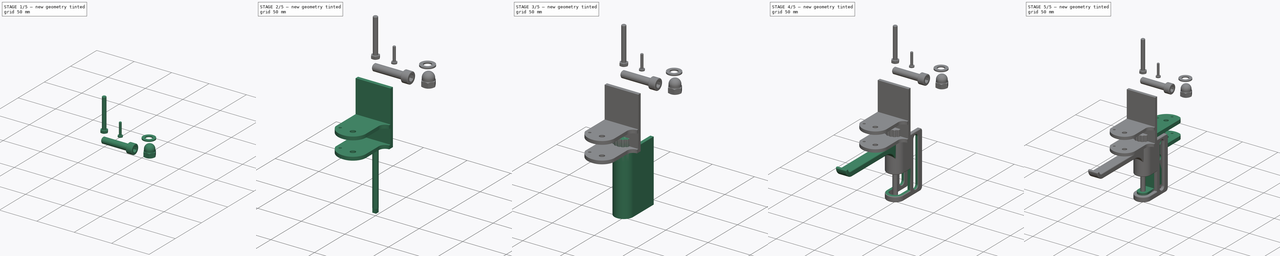
[diagram: build sequence overview — one tinted view per stage of 5, left to right]
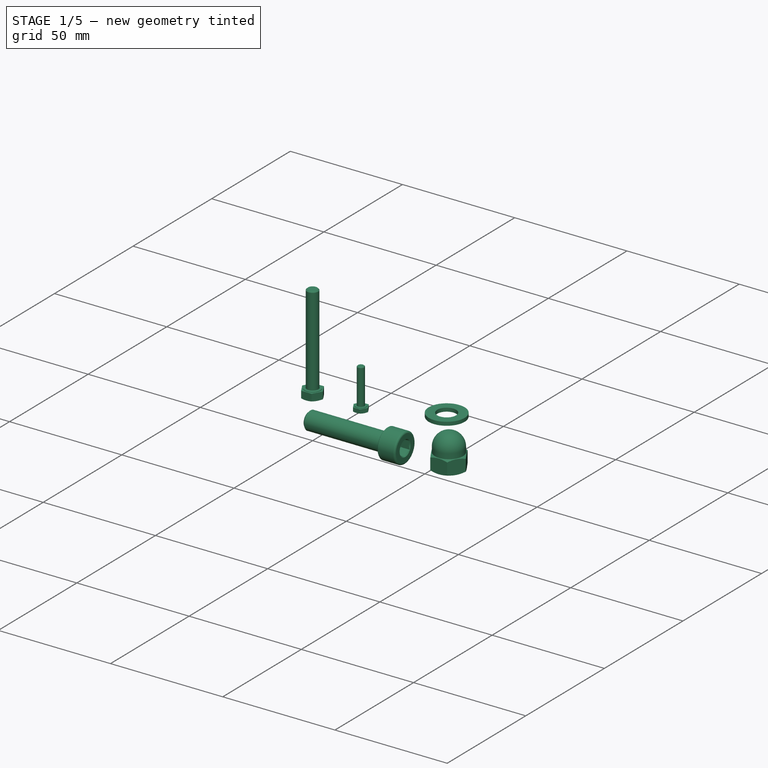
[diagram: stage 1 of 5 — iso view after this stage's code; geometry added in this stage tinted green]
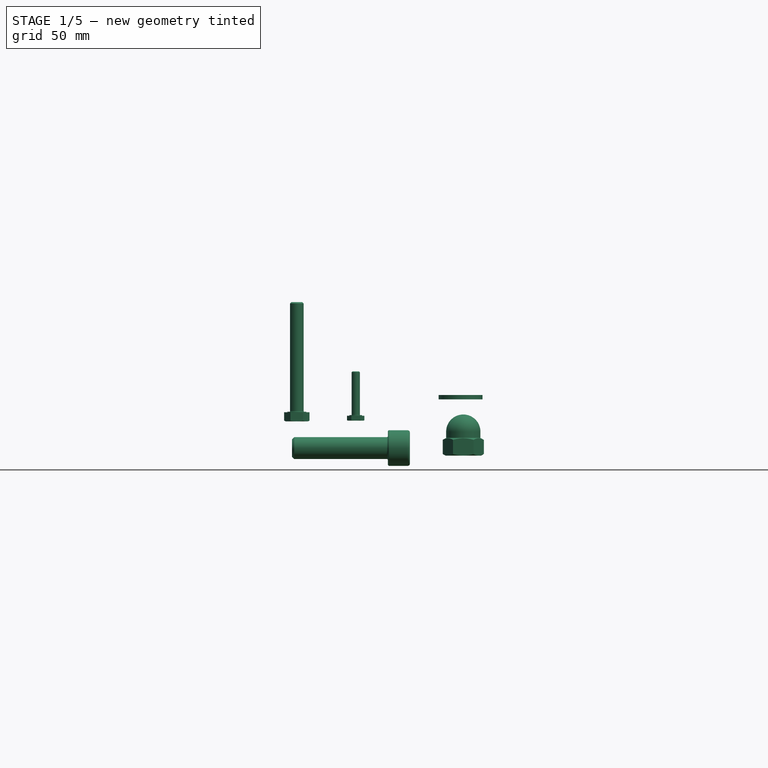
[diagram: stage 1 of 5 — front view after this stage's code; geometry added in this stage tinted green]
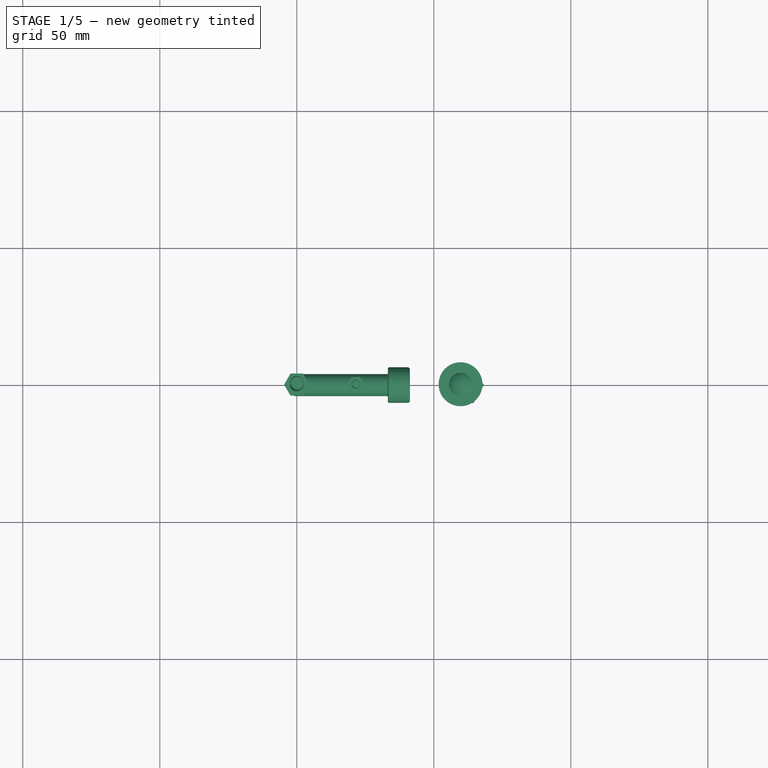
[diagram: stage 1 of 5 — top view after this stage's code; geometry added in this stage tinted green]
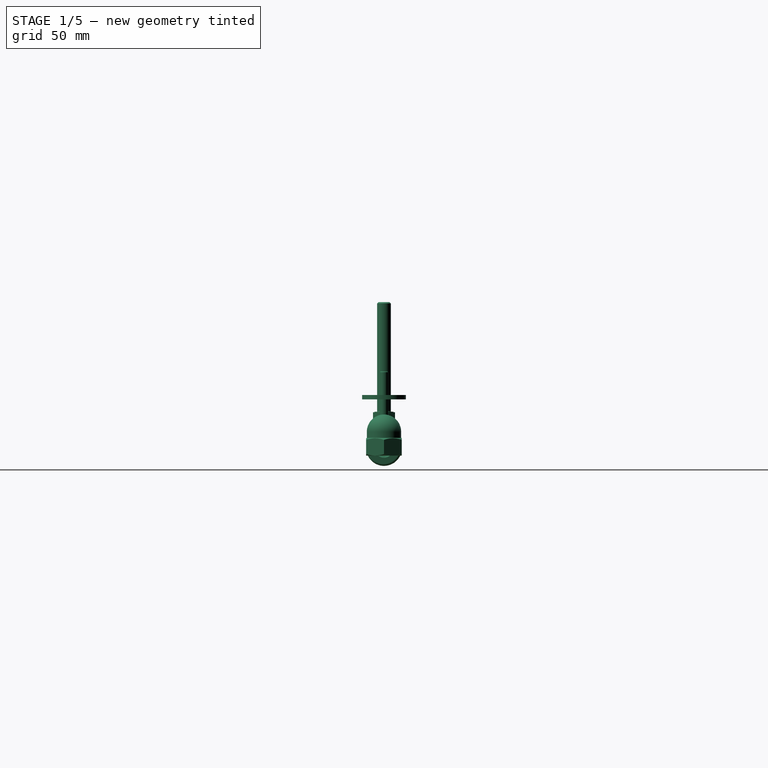
[diagram: stage 1 of 5 — right view after this stage's code; geometry added in this stage tinted green]
FCSTD DOCUMENT  (FreeCAD 0.20R29603 (Git))
Label: wristRest
License: All rights reserved
LicenseURL: http://en.wikipedia.org/wiki/All_rights_reserved
objects: Sketcher::SketchObject×19, PartDesign::Pad×10, PartDesign::Pocket×7, Part::Part2DObjectPython×5, PartDesign::Body×5, Part::FeaturePython×5, PartDesign::Fillet×2, App::DocumentObjectGroup×2, Spreadsheet::Sheet×1, PartDesign::Plane×1, PartDesign::PolarPattern×1, PartDesign::Chamfer×1
note: 76 computed .brp shape members not serialized (recipe doc carries the construction recipe); baked Part::Feature solids carry a one-line shape summary decoded from their .brp

FEATURE [PartDesign::Body] Body004  label="mountingBracket"
  Group = -> [Sketch016,Pad009,Sketch017,Pocket005,Sketch018,Pocket006]
  Origin = -> Origin004
  Placement = pos=(0,98,0) rot=(0,0,1;0rad)
  Tip = -> Pocket006
FEATURE [Part::FeaturePython] Screw  label="M3x16-Screw"  # Fasteners workbench fastener (typed FeaturePython)
  Placement = pos=(21.5,0,89.25) rot=(0,1,0;3.14159rad)
  diameter = 4
  invert = false
  leftHanded = false
  length = 3
  lengthCustom = 16
  matchOuter = false
  offset = 0
  thread = false
  type = 42
FEATURE [Part::FeaturePython] Screw001  label="M5x40-Screw"  # Fasteners workbench fastener (typed FeaturePython)
  Placement = pos=(0,0,90.5) rot=(0,1,0;3.14159rad)
  diameter = 7
  invert = false
  leftHanded = false
  length = 6
  lengthCustom = 40
  matchOuter = false
  offset = 0
  thread = false
  type = 42
FEATURE [Part::FeaturePython] Screw002  label="M8x35-Screw"  # Fasteners workbench fastener (typed FeaturePython)
  Placement = pos=(33.25,0,77.25) rot=(0,1,0;1.5708rad)
  diameter = 8
  invert = false
  leftHanded = false
  length = 7
  lengthCustom = 35
  matchOuter = false
  offset = 0
  thread = false
  type = 48
FEATURE [Part::FeaturePython] Nut  label="M8-Nut"  # Fasteners workbench fastener (typed FeaturePython)
  Placement = pos=(60.75,0,74.5) rot=(0,0,1;0rad)
  diameter = 4
  invert = false
  leftHanded = false
  matchOuter = false
  offset = 0
  thread = false
  type = 9
FEATURE [Part::FeaturePython] Washer  label="M8-Washer"  # Fasteners workbench fastener (typed FeaturePython)
  Placement = pos=(59.75,0,95) rot=(0,0,1;0rad)
  diameter = 8
  invert = false
  matchOuter = false
  offset = 0
  type = 5
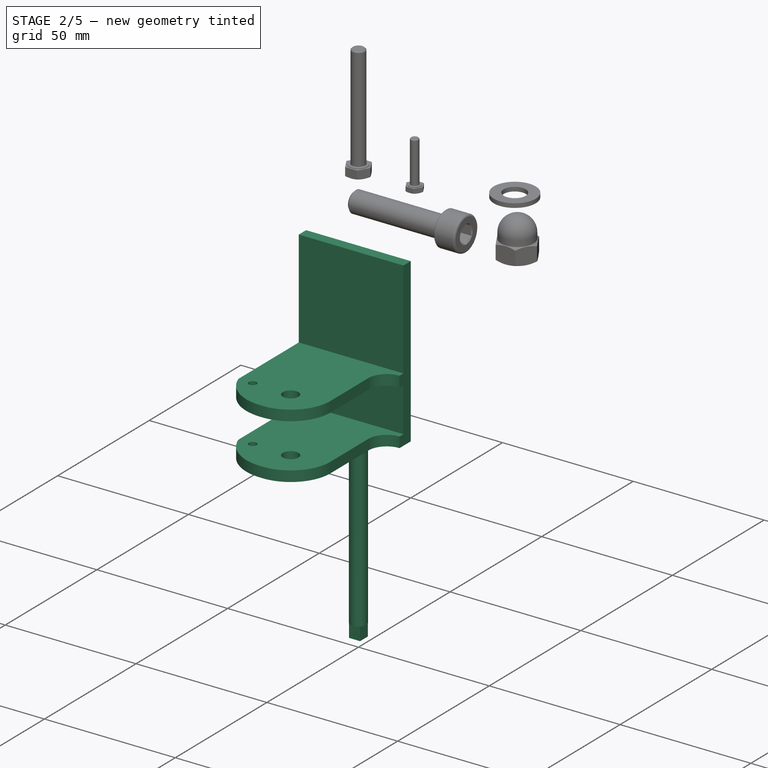
[diagram: stage 2 of 5 — iso view after this stage's code; geometry added in this stage tinted green]
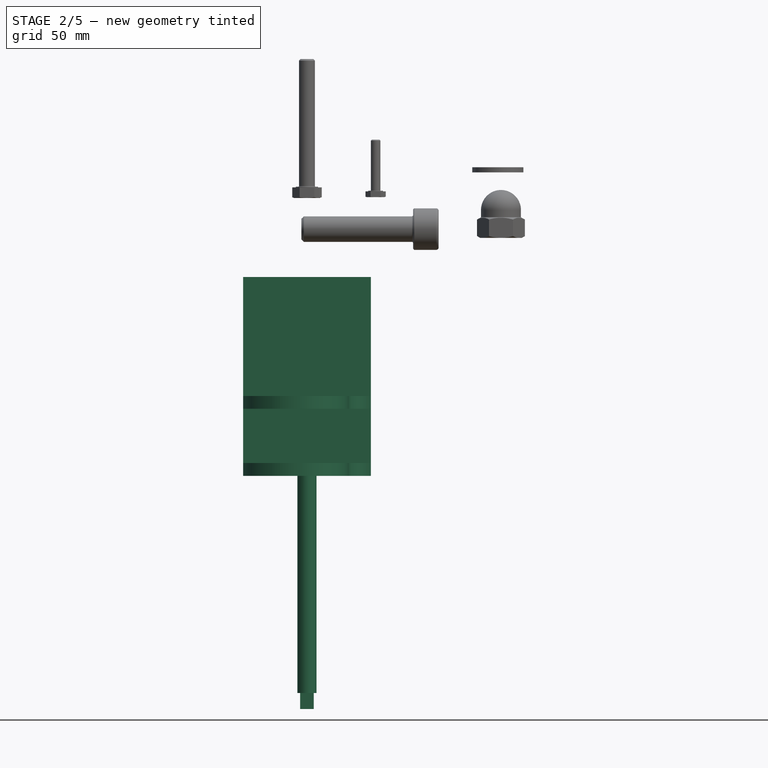
[diagram: stage 2 of 5 — front view after this stage's code; geometry added in this stage tinted green]
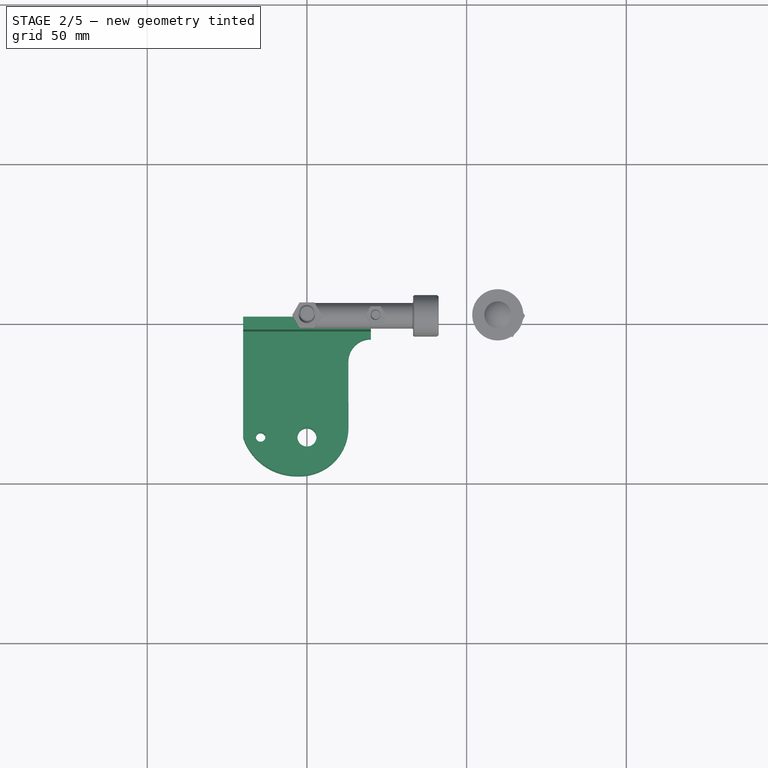
[diagram: stage 2 of 5 — top view after this stage's code; geometry added in this stage tinted green]
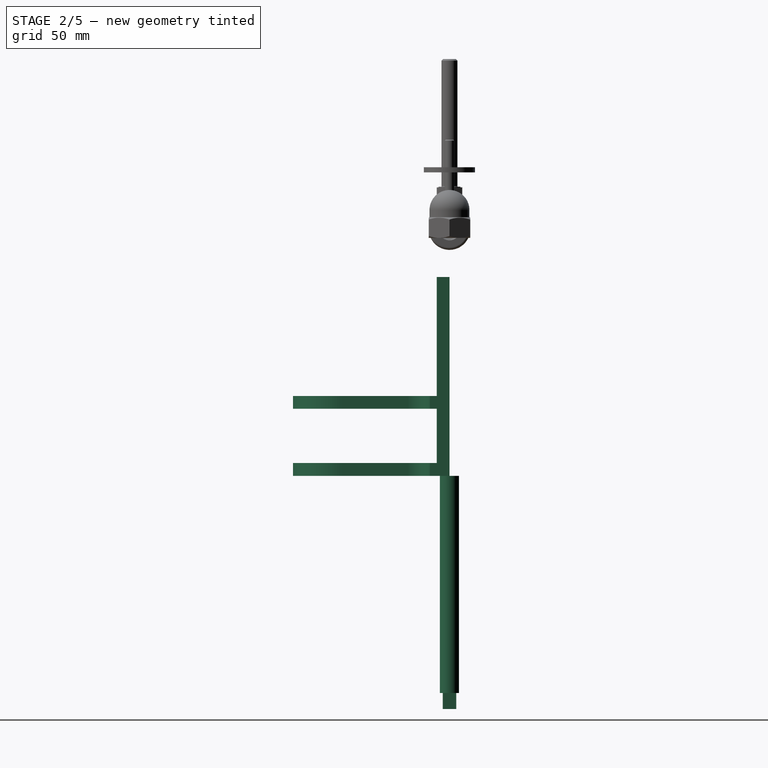
[diagram: stage 2 of 5 — right view after this stage's code; geometry added in this stage tinted green]
FEATURE [PartDesign::Body] Body002  label="Knob"
  Group = -> [Sketch011,Pad006,Sketch012,Pocket003,Sketch013,Pocket004,PolarPattern,Chamfer]
  Origin = -> Origin002
  Placement = pos=(0,0,-53) rot=(0,0,1;0rad)
  Tip = -> Chamfer
FEATURE [Part::Part2DObjectPython] Clone2D003  label="front_masterXY (2D)002"  # Draft 2D object (typed FeaturePython)
  Fuse = false
  Objects = -> [Sketch]
  Scale = (1,1,1)
FEATURE [Sketcher::SketchObject] Sketch014
  ExternalGeometry = -> [Clone2D003]
  FullyConstrained = true
  MapMode = 5
  Support = -> [XY_Plane003]
  expr: Constraints[1] = <<data>>.front_knob_screwdia
  sketch-geometry (1):
    g0: Circle CenterX=0 CenterY=0 CenterZ=0 NormalX=0 NormalY=0 NormalZ=1 AngleXU=0 Radius=3
  constraints (2):
    c: Coincident(g0,g-3)
    c: Diameter(g0) = 6
FEATURE [PartDesign::Pad] Pad007
  Direction = (0,0,1)
  Length = 68
  Length2 = 10
  Profile = -> Sketch014
  ReferenceAxis = -> Sketch014 [N_Axis]
  Reversed = true
  Type = 0
  expr: Length = <<data>>.front_height - <<data>>.dshape_thickness
FEATURE [Sketcher::SketchObject] Sketch015
  AttachmentOffset = pos=(0,0,-68) rot=(0,0,1;0rad)
  ExternalGeometry = -> [Clone2D003]
  FullyConstrained = true
  MapMode = 5
  Placement = pos=(0,0,-68) rot=(0,0,1;0rad)
  Support = -> [XY_Plane003]
  expr: .AttachmentOffset.Base.z = -1 * (<<data>>.front_height - <<data>>.dshape_thickness)
  sketch-geometry (4):
    g0: LineSegment StartX=-2.12132 StartY=2.12132 StartZ=0 EndX=2.12132 EndY=2.12132 EndZ=0
    g1: LineSegment StartX=2.12132 StartY=2.12132 StartZ=0 EndX=2.12132 EndY=-2.12132 EndZ=0
    g2: LineSegment StartX=2.12132 StartY=-2.12132 StartZ=0 EndX=-2.12132 EndY=-2.12132 EndZ=0
    g3: LineSegment StartX=-2.12132 StartY=-2.12132 StartZ=0 EndX=-2.12132 EndY=2.12132 EndZ=0
  constraints (11):
    c: Coincident(g0,g1)
    c: Coincident(g1,g2)
    c: Coincident(g2,g3)
    c: Coincident(g3,g0)
    c: Horizontal(g0)
    c: Horizontal(g2)
    c: Vertical(g1)
    c: Vertical(g3)
    c: PointOnObject(g0,g-3)
    c: Symmetric(g1,g0,g-3)
    c: Equal(g3,g0)
FEATURE [PartDesign::Pad] Pad008
  BaseFeature = -> Pad007
  Direction = (0,0,1)
  Length = 5
  Length2 = 10
  Profile = -> Sketch015
  ReferenceAxis = -> Sketch015 [N_Axis]
  Reversed = true
  Type = 0
  expr: Length = <<data>>.dshape_thickness
FEATURE [PartDesign::Body] Body003  label="Spindle"
  Group = -> [Sketch014,Clone2D003,Pad007,Sketch015,Pad008]
  Origin = -> Origin003
  Tip = -> Pad008
FEATURE [Sketcher::SketchObject] Sketch016
  FullyConstrained = true
  MapMode = 5
  Placement = pos=(0,0,0) rot=(0.57735,0.57735,0.57735;2.0944rad)
  Support = -> [YZ_Plane004]
  expr: Constraints[28] = <<data>>.dshape_distance + <<data>>.dshape_thickness
  sketch-geometry (10):
    g0: LineSegment StartX=0 StartY=62.27 StartZ=0 EndX=0 EndY=0 EndZ=0
    g1: LineSegment StartX=0 StartY=0 StartZ=0 EndX=-49 EndY=0 EndZ=0
    g2: LineSegment StartX=-49 StartY=0 StartZ=0 EndX=-49 EndY=4 EndZ=0
    g3: LineSegment StartX=-49 StartY=4 StartZ=0 EndX=-4 EndY=4 EndZ=0
    g4: LineSegment StartX=-4 StartY=4 StartZ=0 EndX=-4 EndY=21 EndZ=0
    g5: LineSegment StartX=-4 StartY=21 StartZ=0 EndX=-49 EndY=21 EndZ=0
    g6: LineSegment StartX=-49 StartY=21 StartZ=0 EndX=-49 EndY=25 EndZ=0
    g7: LineSegment StartX=-49 StartY=25 StartZ=0 EndX=-4 EndY=25 EndZ=0
    g8: LineSegment StartX=-4 StartY=25 StartZ=0 EndX=-4 EndY=62.27 EndZ=0
    g9: LineSegment StartX=-4 StartY=62.27 StartZ=0 EndX=0 EndY=62.27 EndZ=0
  constraints (29):
    c: PointOnObject(g0,g-2)
    c: Coincident(g0,g1)
    c: Horizontal(g1)
    c: Coincident(g1,g2)
    c: Vertical(g2)
    c: Coincident(g2,g3)
    c: Horizontal(g3)
    c: Coincident(g3,g4)
    c: Vertical(g4)
    c: Coincident(g4,g5)
    c: Horizontal(g5)
    c: Coincident(g5,g6)
    c: Coincident(g6,g7)
    c: Horizontal(g7)
    c: Coincident(g7,g8)
    c: Vertical(g8)
    c: Coincident(g8,g9)
    c: Horizontal(g9)
    c: Coincident(g0,g9)
    c: Equal(g3,g5)
    c: Equal(g2,g6)
    c: Equal(g9,g2)
    c: Vertical(g6)
    c: Vertical(g7,g4)
    c: DistanceX(g7,g7) = 45
    c: DistanceY(g0,g0) = 62.27
    c: DistanceY(g2,g2) = 4
    c: Coincident(g0,g-1)
    c: DistanceY(g3,g7) = 21
FEATURE [PartDesign::Pad] Pad009
  Direction = (1,-2e-16,3e-16)
  Length = 40
  Length2 = 10
  Midplane = true
  Placement = pos=(0,0,0) rot=(0.57735,0.57735,0.57735;2.0944rad)
  Profile = -> Sketch016
  ReferenceAxis = -> Sketch016 [N_Axis]
  Type = 0
FEATURE [Sketcher::SketchObject] Sketch017
  ExternalGeometry = -> [Pad009]
  FullyConstrained = true
  MapMode = 5
  Support = -> [XY_Plane004]
  expr: Constraints[1] = <<data>>.dshape_rotation_dia
  sketch-geometry (1):
    g0: Circle CenterX=0 CenterY=-37 CenterZ=0 NormalX=0 NormalY=0 NormalZ=1 AngleXU=0 Radius=3
  constraints (3):
    c: PointOnObject(g0,g-2)
    c: Diameter(g0) = 6
    c: DistanceY(g-3,g0) = 12
FEATURE [PartDesign::Pocket] Pocket005
  BaseFeature = -> Pad009
  Direction = (0,0,-1)
  Length = 5
  Length2 = 5
  Placement = pos=(0,0,0) rot=(0.57735,0.57735,0.57735;2.0944rad)
  Profile = -> Sketch017
  ReferenceAxis = -> Sketch017 [N_Axis]
  Reversed = true
  Type = 1
FEATURE [Sketcher::SketchObject] Sketch018
  ExternalGeometry = -> [Pocket005]
  FullyConstrained = false
  MapMode = 5
  Support = -> [XY_Plane004]
  expr: Constraints[15] = <<data>>.dshape_fix_dia
  sketch-geometry (10):
    g0: ArcOfCircle CenterX=-3.22144 CenterY=-31.27 CenterZ=0 NormalX=0 NormalY=0 NormalZ=1 AngleXU=0 Radius=17.73 StartAngle=3.47068 EndAngle=4.7124
    g1: LineSegment StartX=-20 StartY=-37 StartZ=0 EndX=-20 EndY=-54.21 EndZ=0
    g2: ArcOfCircle CenterX=-2.22999 CenterY=-33.77 CenterZ=0 NormalX=0 NormalY=0 NormalZ=1 AngleXU=0 Radius=15.23 StartAngle=4.71239 EndAngle=6.28416
    g3: LineSegment StartX=20 StartY=-6.12 StartZ=0 EndX=20 EndY=-54.21 EndZ=0
    g4: LineSegment StartX=20 StartY=-54.21 StartZ=0 EndX=-20 EndY=-54.21 EndZ=0
    g5: LineSegment StartX=-3.22128 StartY=-49 StartZ=0 EndX=-2.22999 EndY=-49 EndZ=0
    g6: Circle CenterX=-14.5 CenterY=-37 CenterZ=0 NormalX=0 NormalY=0 NormalZ=1 AngleXU=0 Radius=1.5
    g7: LineSegment StartX=0 StartY=-37 StartZ=0 EndX=-14.5 EndY=-37 EndZ=0
    g8: LineSegment StartX=13 StartY=-33.7552 StartZ=0 EndX=12.98 EndY=-13.1468 EndZ=0
    g9: ArcOfCircle CenterX=20 CenterY=-13.14 CenterZ=0 NormalX=0 NormalY=0 NormalZ=1 AngleXU=0 Radius=7.02 StartAngle=1.5708 EndAngle=3.14256
  constraints (28):
    c: PointOnObject(g0,g-5)
    c: PointOnObject(g0,g-4)
    c: Coincident(g0,g1)
    c: Vertical(g1)
    c: PointOnObject(g2,g-4)
    c: Coincident(g3,g4)
    c: Coincident(g4,g1)
    c: Horizontal(g4)
    c: Vertical(g3)
    c: Coincident(g5,g0)
    c: Tangent(g5,g2) = -1.5708
    c: Coincident(g7,g-6)
    c: Coincident(g7,g6)
    c: Horizontal(g7)
    c: DistanceX(g7,g7) = 14.5
    c: Diameter(g6) = 3
    c: DistanceX(g7,g2) = 13
    c: Horizontal(g0,g7)
    c: Tangent(g2,g8) = -1.5708
    c: Vertical(g3,g-3)
    c: Coincident(g9,g3)
    c: Perpendicular(g9,g3)
    c: Tangent(g9,g8) = 1.5708
    c: Radius(g9) = 7.02
    c: DistanceY(g-4,g3) = 42.88
    c: DistanceY(g1,g1) = 17.21
    c: Radius(g0) = 17.73
    c: Radius(g2) = 15.23
FEATURE [PartDesign::Pocket] Pocket006
  BaseFeature = -> Pocket005
  Direction = (0,0,-1)
  Length = 5
  Length2 = 5
  Midplane = true
  Placement = pos=(0,0,0) rot=(0.57735,0.57735,0.57735;2.0944rad)
  Profile = -> Sketch018
  ReferenceAxis = -> Sketch018 [N_Axis]
  Type = 1
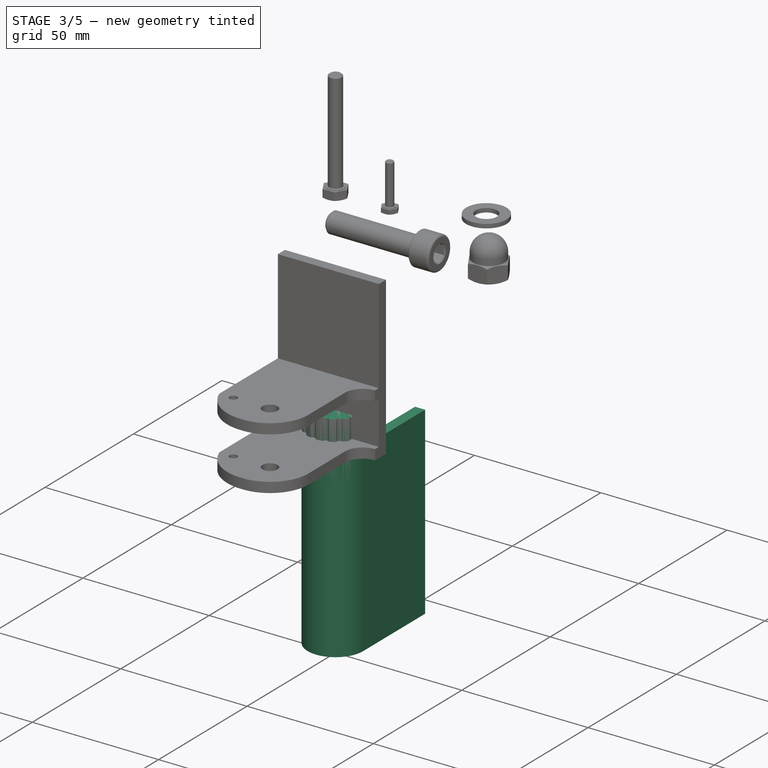
[diagram: stage 3 of 5 — iso view after this stage's code; geometry added in this stage tinted green]
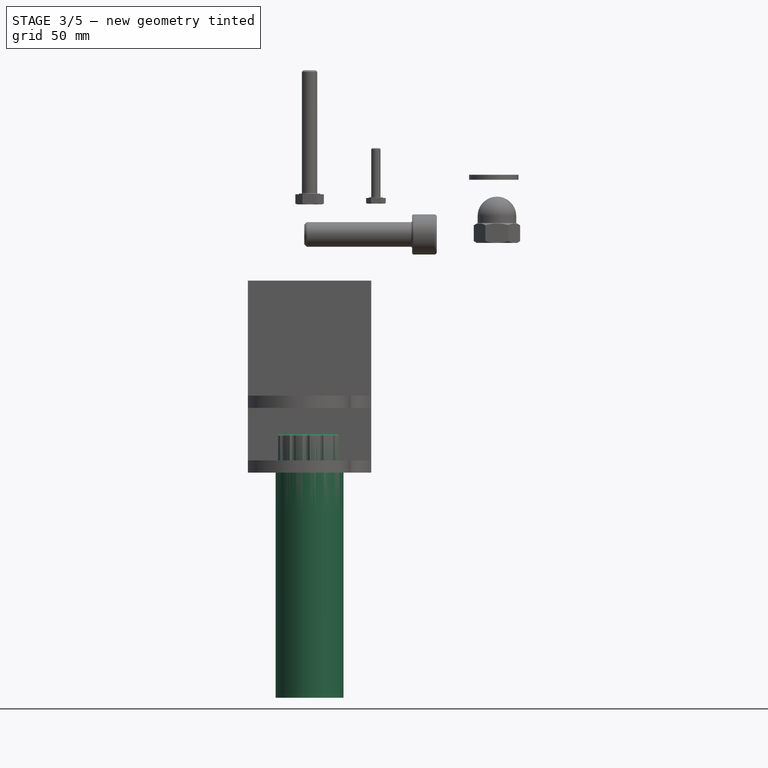
[diagram: stage 3 of 5 — front view after this stage's code; geometry added in this stage tinted green]
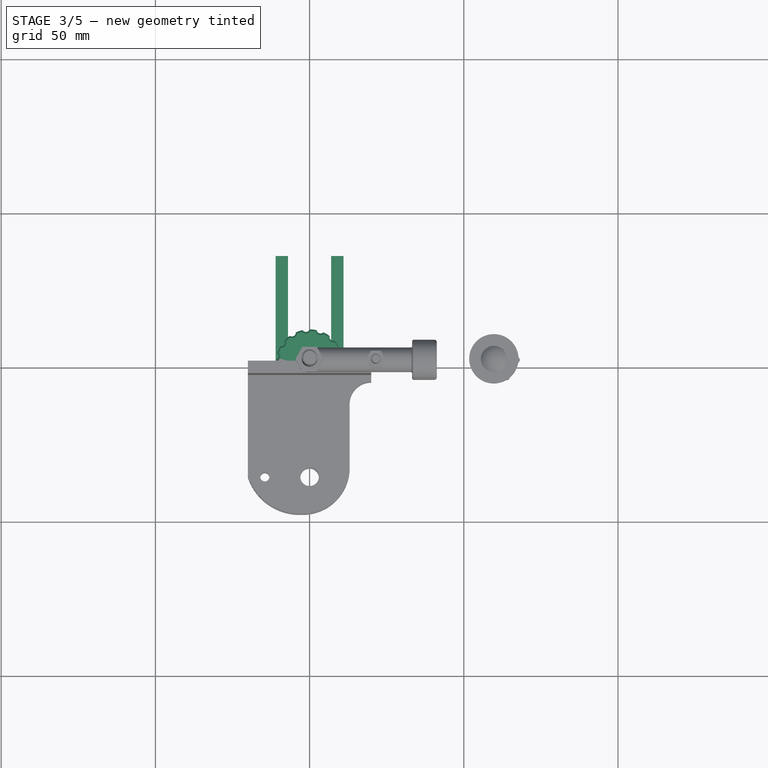
[diagram: stage 3 of 5 — top view after this stage's code; geometry added in this stage tinted green]
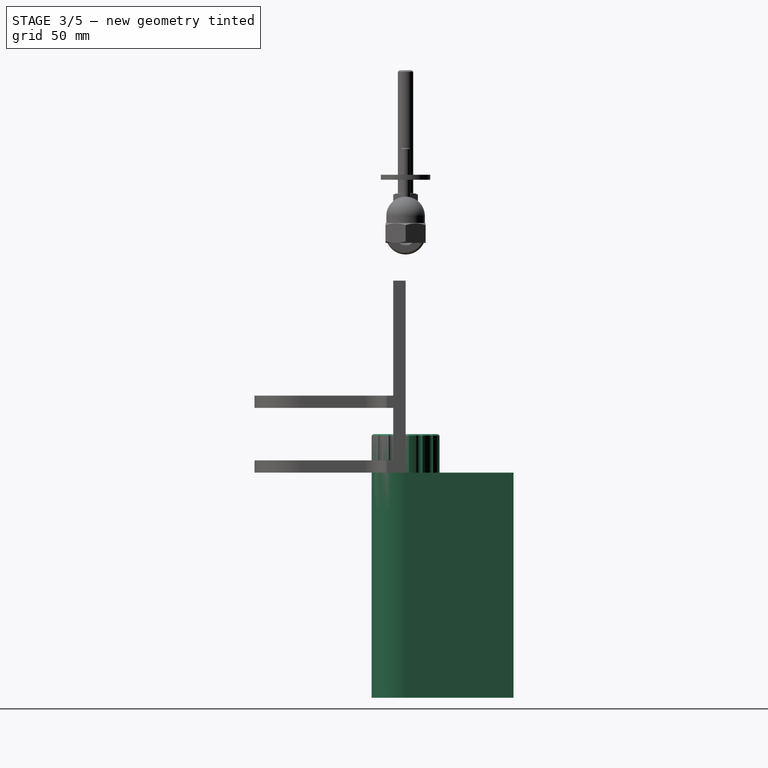
[diagram: stage 3 of 5 — right view after this stage's code; geometry added in this stage tinted green]
FEATURE [Part::Part2DObjectPython] Clone2D001  label="front_masterXY (2D)001"  # Draft 2D object (typed FeaturePython)
  Fuse = false
  Objects = -> [Sketch]
  Scale = (1,1,1)
FEATURE [Sketcher::SketchObject] Sketch007
  ExternalGeometry = -> [Clone2D001]
  FullyConstrained = true
  MapMode = 5
  Support = -> [XY_Plane001]
  sketch-geometry (8):
    g0: LineSegment StartX=-7 StartY=35 StartZ=0 EndX=-7 EndY=0 EndZ=0
    g1: ArcOfCircle CenterX=0 CenterY=0 CenterZ=0 NormalX=0 NormalY=0 NormalZ=1 AngleXU=0 Radius=7 StartAngle=3.14159 EndAngle=6.28319
    g2: LineSegment StartX=7 StartY=-1.7e-15 StartZ=0 EndX=7 EndY=35 EndZ=0
    g3: LineSegment StartX=7 StartY=35 StartZ=0 EndX=11 EndY=35 EndZ=0
    g4: LineSegment StartX=11 StartY=35 StartZ=0 EndX=11 EndY=0 EndZ=0
    g5: ArcOfCircle CenterX=3e-15 CenterY=1.3e-15 CenterZ=0 NormalX=0 NormalY=0 NormalZ=1 AngleXU=0 Radius=11 StartAngle=3.14159 EndAngle=6.28319
    g6: LineSegment StartX=-11 StartY=0 StartZ=0 EndX=-11 EndY=35 EndZ=0
    g7: LineSegment StartX=-11 StartY=35 StartZ=0 EndX=-7 EndY=35 EndZ=0
  constraints (19):
    c: Coincident(g-4,g0)
    c: Coincident(g0,g-4)
    c: Tangent(g0,g1) = -1.5708
    c: Coincident(g1,g-5)
    c: Tangent(g1,g2) = -1.5708
    c: Coincident(g2,g3)
    c: Coincident(g3,g4)
    c: PointOnObject(g4,g-1)
    c: Vertical(g4)
    c: Tangent(g4,g5) = 1.5708
    c: PointOnObject(g5,g-1)
    c: Tangent(g5,g6) = 1.5708
    c: Coincident(g6,g7)
    c: Coincident(g7,g0)
    c: Horizontal(g6,g0)
    c: Horizontal(g0,g2)
    c: Horizontal(g2,g3)
    c: Equal(g3,g7)
    c: DistanceX(g3,g3) = 4
FEATURE [PartDesign::Pad] Pad004
  Direction = (0,0,1)
  Length = 73
  Length2 = 10
  Profile = -> Sketch007
  ReferenceAxis = -> Sketch007 [N_Axis]
  Reversed = true
  Type = 0
  expr: Length = <<data>>.front_height
FEATURE [PartDesign::Body] Body001  label="wristRest_Outside"
  Group = -> [Clone2D001,Sketch007,Pad004,Clone2D002,Sketch008,Pocket001,Sketch009,Pocket002,Sketch010,Pad005,Fillet002,Fillet003]
  Origin = -> Origin001
  Tip = -> Fillet003
FEATURE [Sketcher::SketchObject] Sketch011
  FullyConstrained = true
  MapMode = 5
  Support = -> [XY_Plane002]
  expr: Constraints[1] = <<data>>.front_knob_dia
  expr: Constraints[3] = <<data>>.front_knob_screwdia + 1
  sketch-geometry (2):
    g0: Circle CenterX=0 CenterY=0 CenterZ=0 NormalX=0 NormalY=0 NormalZ=1 AngleXU=0 Radius=11
    g1: Circle CenterX=0 CenterY=0 CenterZ=0 NormalX=0 NormalY=0 NormalZ=1 AngleXU=0 Radius=3.5
  constraints (4):
    c: Coincident(g0,g-1)
    c: Diameter(g0) = 22
    c: Coincident(g1,g0)
    c: Diameter(g1) = 7
FEATURE [PartDesign::Pad] Pad006
  Direction = (0,0,1)
  Length = 25
  Length2 = 10
  Midplane = true
  Profile = -> Sketch011
  ReferenceAxis = -> Sketch011 [N_Axis]
  Type = 0
  expr: Length = <<data>>.front_knob_height
FEATURE [Sketcher::SketchObject] Sketch012
  FullyConstrained = true
  MapMode = 5
  Support = -> [XY_Plane002]
  sketch-geometry (7):
    g0: LineSegment StartX=0 StartY=5.88897 StartZ=0 EndX=-5.1 EndY=2.94449 EndZ=0
    g1: LineSegment StartX=-5.1 StartY=2.94449 StartZ=0 EndX=-5.1 EndY=-2.94449 EndZ=0
    g2: LineSegment StartX=-5.1 StartY=-2.94449 StartZ=0 EndX=0 EndY=-5.88897 EndZ=0
    g3: LineSegment StartX=0 StartY=-5.88897 StartZ=0 EndX=5.1 EndY=-2.94449 EndZ=0
    g4: LineSegment StartX=5.1 StartY=-2.94449 StartZ=0 EndX=5.1 EndY=2.94449 EndZ=0
    g5: LineSegment StartX=5.1 StartY=2.94449 StartZ=0 EndX=0 EndY=5.88897 EndZ=0
    g6: Circle CenterX=0 CenterY=0 CenterZ=0 NormalX=0 NormalY=0 NormalZ=1 AngleXU=0 Radius=5.88897
  constraints (16):
    c: Coincident(g0,g1)
    c: Coincident(g1,g2)
    c: Coincident(g2,g3)
    c: Coincident(g3,g4)
    c: Coincident(g4,g5)
    c: Coincident(g5,g0)
    c: Equal(g0, g1-g5) x5
    c: PointOnObject(g0,g6)
    c: PointOnObject(g1,g6)
    c: PointOnObject(g2,g6)
    c: PointOnObject(g3,g6)
    c: PointOnObject(g4,g6)
    c: PointOnObject(g5,g6)
    c: Coincident(g6,g-1)
    c: PointOnObject(g5,g-2)
    c: Distance(g0,g3) = 10.2
FEATURE [PartDesign::Pocket] Pocket003  label="m6screw"
  BaseFeature = -> Pad006
  Direction = (0,0,-1)
  Length = 5
  Length2 = 5
  Midplane = true
  Profile = -> Sketch012
  ReferenceAxis = -> Sketch012 [N_Axis]
  Type = 0
FEATURE [Sketcher::SketchObject] Sketch013
  ExternalGeometry = -> [Pocket003]
  FullyConstrained = true
  MapMode = 5
  Support = -> [XY_Plane002]
  expr: Constraints[2] = <<data>>.front_knob_dia / 2 + 0.5
  sketch-geometry (1):
    g0: Circle CenterX=11.5 CenterY=0 CenterZ=0 NormalX=0 NormalY=0 NormalZ=1 AngleXU=0 Radius=1.25
  constraints (3):
    c: Diameter(g0) = 2.5
    c: PointOnObject(g0,g-1)
    c: DistanceX(g0) = 11.5
FEATURE [PartDesign::Pocket] Pocket004
  BaseFeature = -> Pocket003
  Direction = (0,0,-1)
  Length = 5
  Length2 = 5
  Midplane = true
  Profile = -> Sketch013
  ReferenceAxis = -> Sketch013 [N_Axis]
  Type = 1
FEATURE [PartDesign::PolarPattern] PolarPattern
  Angle = 360
  Axis = -> Sketch013 [N_Axis]
  BaseFeature = -> Pocket004
  Occurrences = 15
  Originals = -> [Pocket004]
FEATURE [PartDesign::Chamfer] Chamfer
  Angle = 45
  Base = -> PolarPattern [Face4,Face2]
  BaseFeature = -> PolarPattern
  ChamferType = 0
  FlipDirection = false
  Size = 0.5
  Size2 = 1
  SupportTransform = false
  UseAllEdges = false
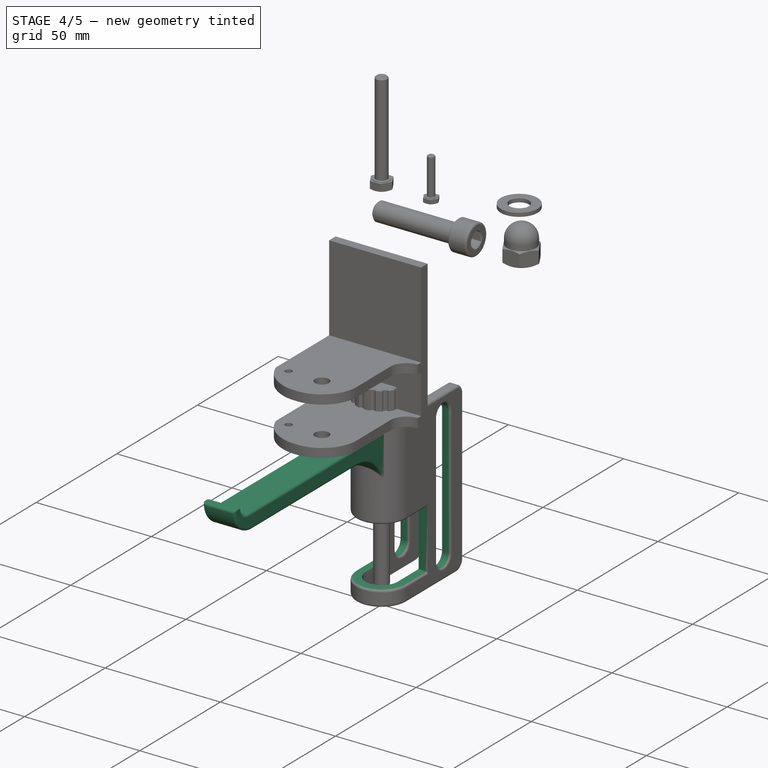
[diagram: stage 4 of 5 — iso view after this stage's code; geometry added in this stage tinted green]
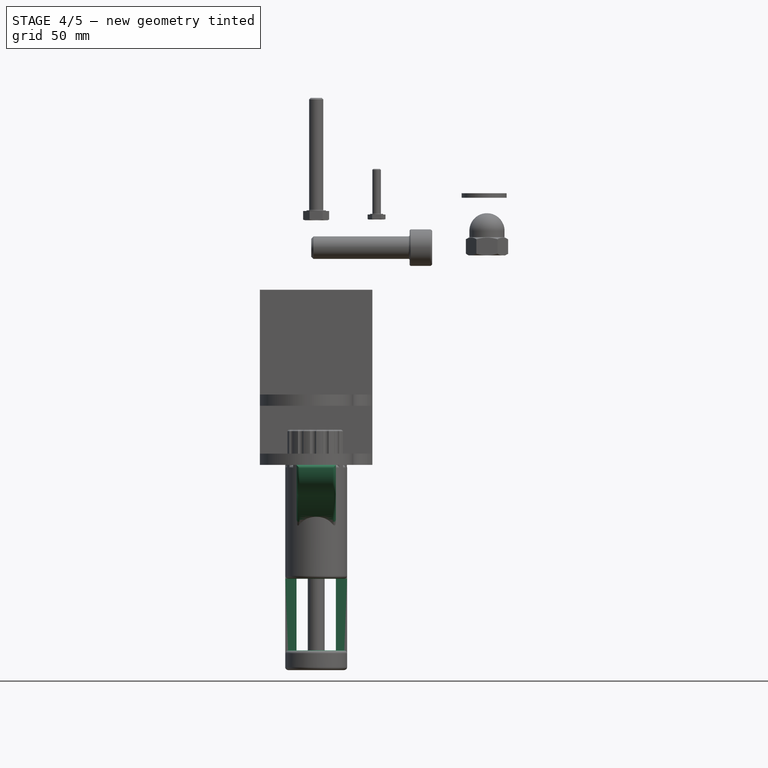
[diagram: stage 4 of 5 — front view after this stage's code; geometry added in this stage tinted green]
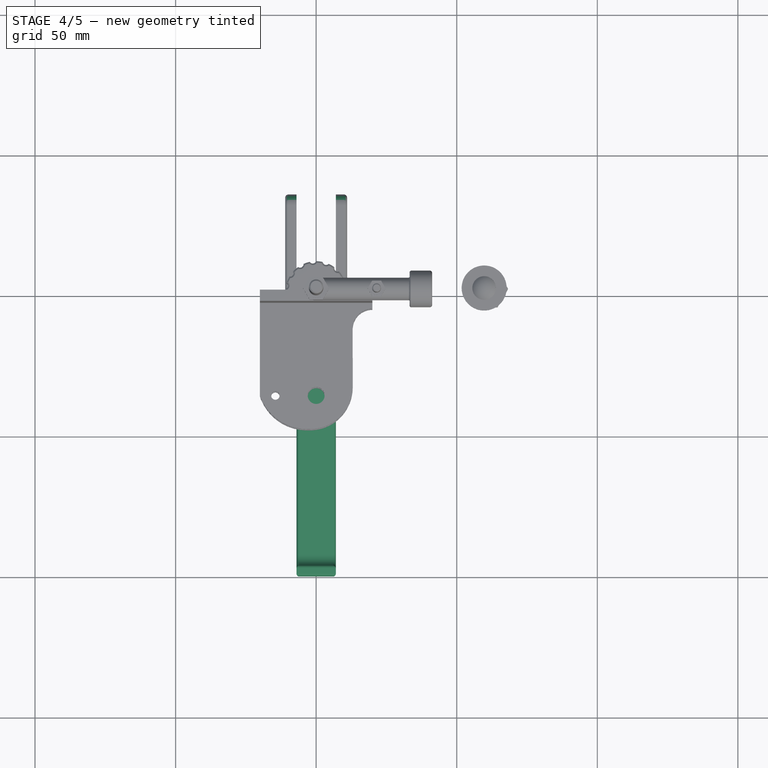
[diagram: stage 4 of 5 — top view after this stage's code; geometry added in this stage tinted green]
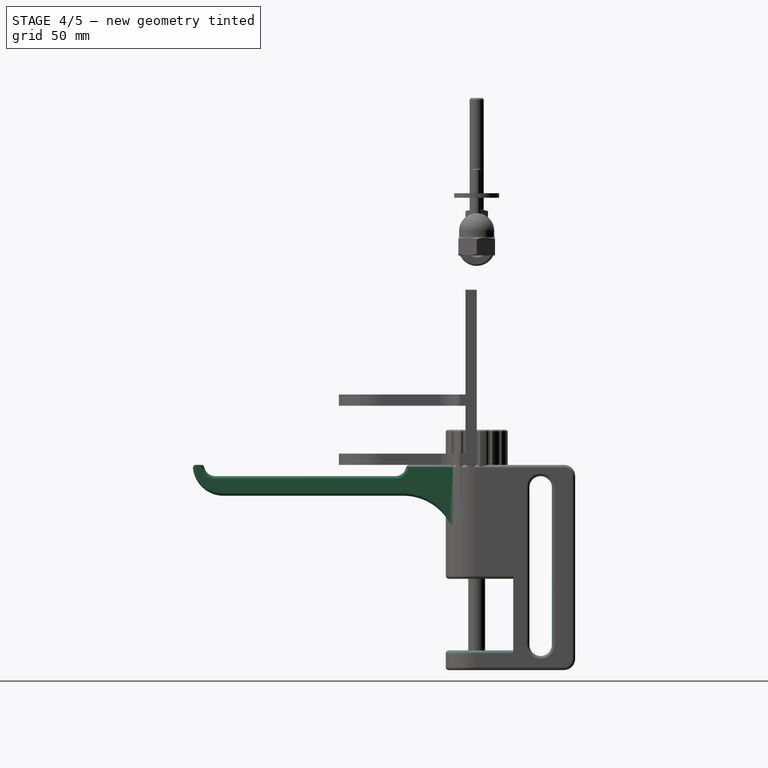
[diagram: stage 4 of 5 — right view after this stage's code; geometry added in this stage tinted green]
FEATURE [Part::Part2DObjectPython] Clone2D002  label="front_masterYZ (2D)"  # Draft 2D object (typed FeaturePython)
  Fuse = false
  Objects = -> [Sketch001]
  Placement = pos=(0,0,0) rot=(0.57735,0.57735,0.57735;2.0944rad)
  Scale = (1,1,1)
FEATURE [Sketcher::SketchObject] Sketch008
  ExternalGeometry = -> [Clone2D002,Pad004]
  FullyConstrained = true
  MapMode = 5
  Placement = pos=(0,0,0) rot=(0.57735,0.57735,0.57735;2.0944rad)
  Support = -> [YZ_Plane001]
  expr: Constraints[12] = <<data>>.dshape_thickness
  expr: Constraints[7] = <<data>>.front_slidingHole / 2
  sketch-geometry (5):
    g0: ArcOfCircle CenterX=22.75 CenterY=-8 CenterZ=0 NormalX=0 NormalY=0 NormalZ=1 AngleXU=0 Radius=4 StartAngle=0 EndAngle=3.14159
    g1: ArcOfCircle CenterX=22.75 CenterY=-64 CenterZ=0 NormalX=0 NormalY=0 NormalZ=1 AngleXU=0 Radius=4 StartAngle=3.14159 EndAngle=6.28319
    g2: LineSegment StartX=18.75 StartY=-8 StartZ=0 EndX=18.75 EndY=-64 EndZ=0
    g3: LineSegment StartX=26.75 StartY=-64 StartZ=0 EndX=26.75 EndY=-8 EndZ=0
    g4: LineSegment StartX=0 StartY=-68 StartZ=0 EndX=35 EndY=-68 EndZ=0
  constraints (13):
    c: Tangent(g0,g2) = -1.5708
    c: Tangent(g2,g1) = -1.5708
    c: Tangent(g1,g3) = -1.5708
    c: Tangent(g3,g0) = -1.5708
    c: Equal(g0,g1)
    c: Coincident(g0,g-3)
    c: Vertical(g2)
    c: Radius(g0) = 4
    c: PointOnObject(g4,g-2)
    c: Horizontal(g4)
    c: Vertical(g4,g-4)
    c: Tangent(g4,g1)
    c: DistanceY(g-4,g4) = 5
FEATURE [PartDesign::Pocket] Pocket001  label="slidingPocket"
  BaseFeature = -> Pad004
  Direction = (-1,2e-16,-3e-16)
  Length = 5
  Length2 = 5
  Midplane = true
  Profile = -> Sketch008
  ReferenceAxis = -> Sketch008 [N_Axis]
  Type = 1
FEATURE [Sketcher::SketchObject] Sketch009
  ExternalGeometry = -> [Pocket001]
  FullyConstrained = true
  MapMode = 5
  Placement = pos=(0,0,0) rot=(0.57735,0.57735,0.57735;2.0944rad)
  Support = -> [YZ_Plane001]
  expr: Constraints[10] = <<data>>.front_knob_dia + 2
  expr: Constraints[11] = <<data>>.front_knob_height + 0.5
  expr: Constraints[9] = <<data>>.dshape_thickness + 2
  sketch-geometry (4):
    g0: LineSegment StartX=-11 StartY=-66 StartZ=0 EndX=13 EndY=-66 EndZ=0
    g1: LineSegment StartX=13 StartY=-66 StartZ=0 EndX=13 EndY=-40.5 EndZ=0
    g2: LineSegment StartX=13 StartY=-40.5 StartZ=0 EndX=-11 EndY=-40.5 EndZ=0
    g3: LineSegment StartX=-11 StartY=-40.5 StartZ=0 EndX=-11 EndY=-66 EndZ=0
  constraints (12):
    c: Coincident(g0,g1)
    c: Coincident(g1,g2)
    c: Coincident(g2,g3)
    c: Coincident(g3,g0)
    c: Horizontal(g0)
    c: Horizontal(g2)
    c: Vertical(g1)
    c: Vertical(g3)
    c: Vertical(g0,g-3)
    c: DistanceY(g-3,g0) = 7
    c: DistanceX(g0,g0) = 24
    c: DistanceY(g3,g3) = 25.5
FEATURE [PartDesign::Pocket] Pocket002
  BaseFeature = -> Pocket001
  Direction = (-1,2e-16,-3e-16)
  Length = 5
  Length2 = 5
  Midplane = true
  Profile = -> Sketch009
  ReferenceAxis = -> Sketch009 [N_Axis]
  Type = 1
FEATURE [Sketcher::SketchObject] Sketch010
  ExternalGeometry = -> [Pocket002]
  FullyConstrained = true
  MapMode = 5
  Placement = pos=(0,0,0) rot=(0.57735,0.57735,0.57735;2.0944rad)
  Support = -> [YZ_Plane001]
  sketch-geometry (10):
    g0: LineSegment StartX=-7 StartY=0 StartZ=0 EndX=-25 EndY=0 EndZ=0
    g1: ArcOfCircle CenterX=-29 CenterY=7e-16 CenterZ=0 NormalX=0 NormalY=0 NormalZ=1 AngleXU=0 Radius=4 StartAngle=4.71239 EndAngle=6.28319
    g2: LineSegment StartX=-29 StartY=-4 StartZ=0 EndX=-93 EndY=-4 EndZ=0
    g3: ArcOfCircle CenterX=-93 CenterY=2.1e-15 CenterZ=0 NormalX=0 NormalY=0 NormalZ=1 AngleXU=0 Radius=4 StartAngle=3.14159 EndAngle=4.71239
    g4: LineSegment StartX=-97 StartY=2.1e-15 StartZ=0 EndX=-101 EndY=2.1e-15 EndZ=0
    g5: ArcOfCircle CenterX=-90 CenterY=-7e-16 CenterZ=0 NormalX=0 NormalY=0 NormalZ=1 AngleXU=0 Radius=11 StartAngle=3.14159 EndAngle=4.71239
    g6: LineSegment StartX=-90 StartY=-11 StartZ=0 EndX=-26.1 EndY=-11 EndZ=0
    g7: ArcOfCircle CenterX=-26.1 CenterY=-30 CenterZ=0 NormalX=0 NormalY=0 NormalZ=1 AngleXU=0 Radius=19 StartAngle=9.7e-15 EndAngle=1.5708
    g8: LineSegment StartX=-7 StartY=-30 StartZ=0 EndX=-7 EndY=0 EndZ=0
    g9: LineSegment StartX=-7.1 StartY=-30 StartZ=0 EndX=-7 EndY=-30 EndZ=0
  constraints (28):
    c: PointOnObject(g0,g-1)
    c: Perpendicular(g0,g1) = 4.71239
    c: Horizontal(g2)
    c: Tangent(g2,g3) = 1.5708
    c: PointOnObject(g4,g-1)
    c: Horizontal(g4)
    c: Perpendicular(g4,g5) = 1.5708
    c: Horizontal(g6)
    c: Tangent(g6,g7) = 1.5708
    c: Coincident(g8,g0)
    c: Vertical(g8)
    c: Coincident(g3,g4)
    c: Tangent(g1,g2) = 1.5708
    c: Horizontal(g3,g3)
    c: Tangent(g5,g6) = -1.5708
    c: DistanceX(g4,g4) = 4
    c: DistanceY(g5,g2) = 7
    c: Coincident(g9,g7)
    c: Coincident(g9,g8)
    c: Horizontal(g9)
    c: Perpendicular(g7,g9)
    c: DistanceY(g8,g8) = 30
    c: Horizontal(g0)
    c: DistanceX(g-3,g0) = 4
    c: DistanceY(g2,g5) = 4
    c: DistanceX(g9,g9) = 0.1
    c: DistanceX(g3,g0) = 72
    c: DistanceX(g4,g-3) = 90
FEATURE [PartDesign::Pad] Pad005
  BaseFeature = -> Pocket002
  Direction = (1,-2e-16,3e-16)
  Length = 14
  Length2 = 10
  Midplane = true
  Profile = -> Sketch010
  ReferenceAxis = -> Sketch010 [N_Axis]
  Type = 0
  expr: Length = <<data>>.front_armWidth
FEATURE [PartDesign::Fillet] Fillet002
  Base = -> Pad005 [Edge67,Edge18,Edge46,Edge42]
  BaseFeature = -> Pad005
  Radius = 4
  Refine = true
  SupportTransform = false
  UseAllEdges = false
FEATURE [PartDesign::Fillet] Fillet003
  Base = -> Fillet002 [Edge65,Edge103,Edge76,Edge94,Edge111,Edge93,Edge102,Edge100,Edge91,Edge114,Edge113,Edge98,Edge89,Edge26,Edge42,Edge13,Edge84,Edge55,Edge75]
  BaseFeature = -> Fillet002
  Radius = 1.1
  SupportTransform = false
  UseAllEdges = false
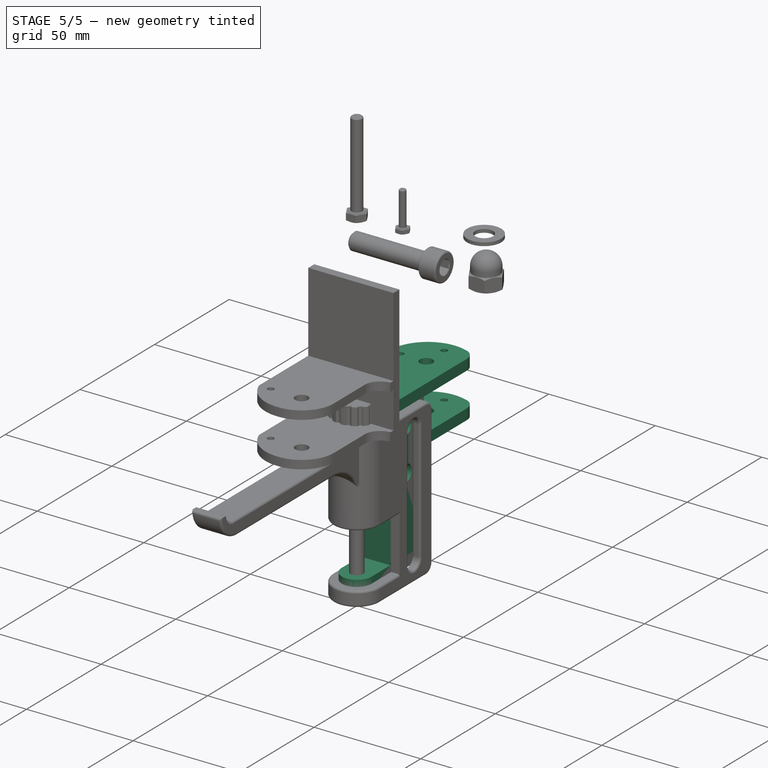
[diagram: stage 5 of 5 — iso view after this stage's code; geometry added in this stage tinted green]
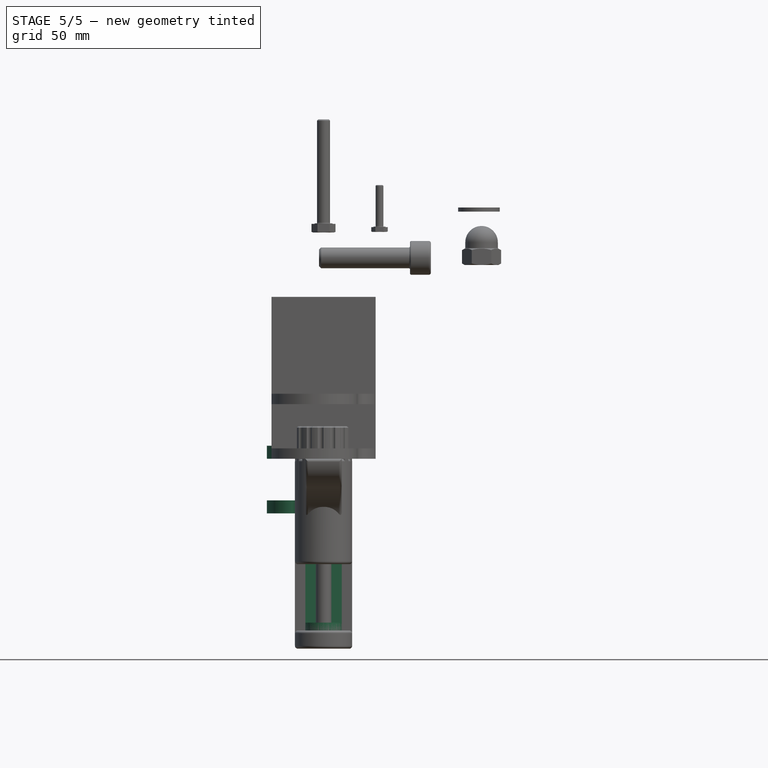
[diagram: stage 5 of 5 — front view after this stage's code; geometry added in this stage tinted green]
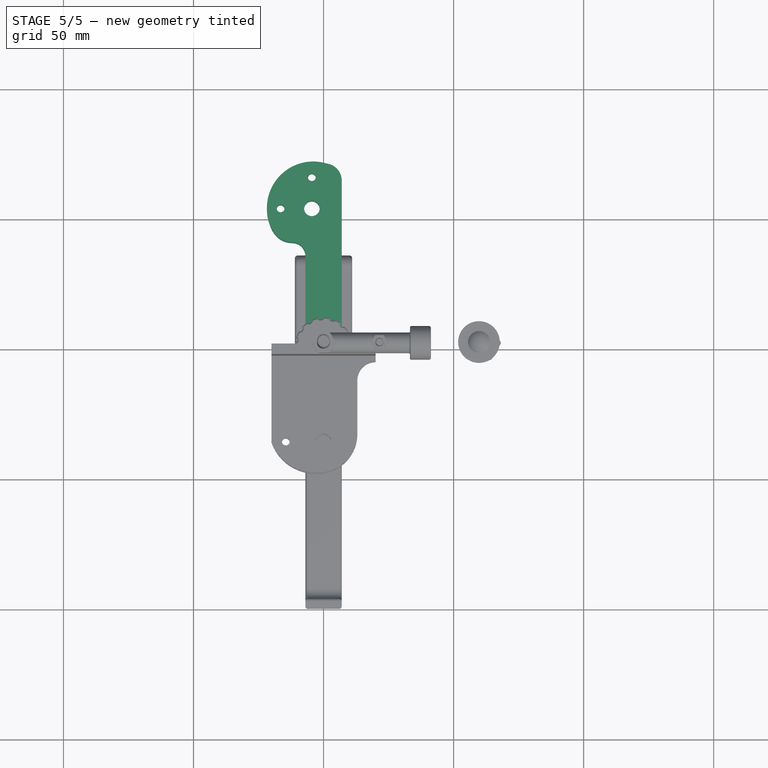
[diagram: stage 5 of 5 — top view after this stage's code; geometry added in this stage tinted green]
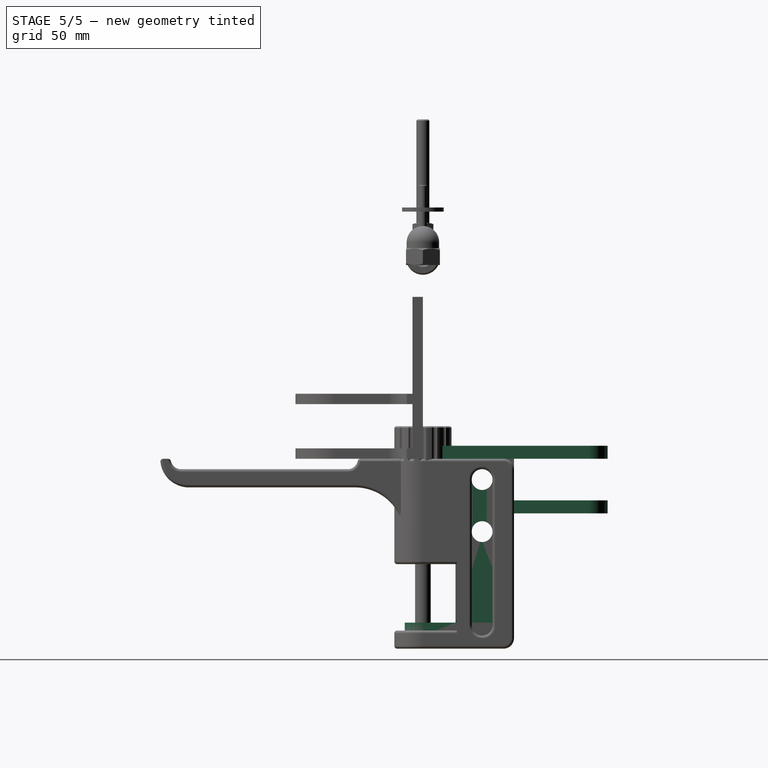
[diagram: stage 5 of 5 — right view after this stage's code; geometry added in this stage tinted green]
FEATURE [Spreadsheet::Sheet] Spreadsheet  label="data"
  cells = A1=front_knob_height; B1(front_knob_height)=25; A2=front_knob_dia; B2(front_knob_dia)=22; A3=front_knob_screwdia; B3(front_knob_screwdia)=6; A4=front_height; B4(front_height)=73; A6=front_outerWidth; B6(front_outerWidth)=; A7=front_outerSidewallThickness; B7(front_outerSidewallThickness)=4; A9=front_armWidth; B9(front_armWidth)=14; A10=front_slidingHole; B10(front_slidingHole)=8; A12=dshape_rotation_dia; B12(dshape_rotation_dia)=6; A13=dshape_fix_dia; B13(dshape_fix_dia)=3; A14=dshape_knob_topdia; B14(dshape_knob_topdia)=6; A15=dshape_thickness; B15(dshape_thickness)=5; A16=dshape_distance; B16(dshape_distance)=16
FEATURE [Sketcher::SketchObject] Sketch  label="front_masterXY"
  FullyConstrained = true
  expr: Constraints[44] = <<data>>.front_knob_dia - 1
  expr: Constraints[4] = <<data>>.front_armWidth
  sketch-geometry (20):
    g0: LineSegment StartX=7 StartY=-1.7e-15 StartZ=0 EndX=7 EndY=63.6529 EndZ=0
    g1: ArcOfCircle CenterX=0.369862 CenterY=63.6529 CenterZ=0 NormalX=0 NormalY=0 NormalZ=1 AngleXU=0 Radius=6.63014 StartAngle=3e-16 EndAngle=1.43326
    g2: ArcOfCircle CenterX=-12 CenterY=48.5529 CenterZ=0 NormalX=0 NormalY=0 NormalZ=1 AngleXU=0 Radius=8.5529 StartAngle=3.66076 EndAngle=4.71239
    g3: LineSegment StartX=-12 StartY=40 StartZ=0 EndX=-7 EndY=40 EndZ=0
    g4: ArcOfCircle CenterX=0 CenterY=0 CenterZ=0 NormalX=0 NormalY=0 NormalZ=1 AngleXU=0 Radius=7 StartAngle=3.14159 EndAngle=6.28319
    g5: ArcOfCircle CenterX=-3.93708 CenterY=53.1605 CenterZ=0 NormalX=0 NormalY=0 NormalZ=1 AngleXU=0 Radius=17.8395 StartAngle=1.27408 EndAngle=3.66076
    g6: LineSegment StartX=-7 StartY=40 StartZ=0 EndX=-7 EndY=35 EndZ=0
    g7: LineSegment StartX=-7 StartY=35 StartZ=0 EndX=-7 EndY=0 EndZ=0
    g8: LineSegment StartX=-20.5529 StartY=48.5529 StartZ=0 EndX=-20.5529 EndY=0 EndZ=0
    g9: Circle CenterX=-4.5 CenterY=53 CenterZ=0 NormalX=0 NormalY=0 NormalZ=1 AngleXU=0 Radius=1.5
    g10: ArcOfCircle CenterX=-4.5 CenterY=53 CenterZ=0 NormalX=0 NormalY=0 NormalZ=1 AngleXU=0 Radius=12 StartAngle=1.5708 EndAngle=3.14159
    g11: LineSegment StartX=0 StartY=71 StartZ=0 EndX=-20.5529 EndY=71 EndZ=0
    g12: Circle CenterX=-16.5 CenterY=53 CenterZ=0 NormalX=0 NormalY=0 NormalZ=1 AngleXU=0 Radius=1.5
    g13: Circle CenterX=-4.5 CenterY=65 CenterZ=0 NormalX=0 NormalY=0 NormalZ=1 AngleXU=0 Radius=1.5
    g14: ArcOfCircle CenterX=-12 CenterY=35 CenterZ=0 NormalX=0 NormalY=0 NormalZ=1 AngleXU=0 Radius=5 StartAngle=6.28319 EndAngle=7.85398
    g15: Circle CenterX=0 CenterY=0 CenterZ=0 NormalX=0 NormalY=0 NormalZ=1 AngleXU=0 Radius=3
    g16: LineSegment StartX=-7 StartY=10.5 StartZ=0 EndX=7 EndY=10.5 EndZ=0
    g17: Circle CenterX=0 CenterY=0 CenterZ=0 NormalX=0 NormalY=0 NormalZ=1 AngleXU=0 Radius=10.5
    g18: LineSegment StartX=-7.82624 StartY=-7 StartZ=0 EndX=7.82624 EndY=-7 EndZ=0
    g19: LineSegment StartX=-7.82624 StartY=-10.5 StartZ=0 EndX=7.82624 EndY=-10.5 EndZ=0
  constraints (61):
    c: Vertical(g0)
    c: Tangent(g0,g1) = -1.5708
    c: Coincident(g3,g6)
    c: Horizontal(g3)
    c: DistanceX(g7,g0) = 14
    c: Coincident(g5,g1)
    c: Coincident(g6,g7)
    c: Vertical(g6)
    c: Vertical(g7)
    c: Equal(g6,g3)
    c: DistanceY(g6,g6) = 5
    c: PointOnObject(g8,g-1)
    c: Vertical(g8)
    c: Tangent(g8,g2) = -1.5708
    c: Tangent(g2,g5) = -1.5708
    c: Tangent(g2,g3) = -1.5708
    c: Coincident(g4,g0)
    c: PointOnObject(g0,g-1)
    c: Coincident(g4,g-1)
    c: Coincident(g10,g9)
    c: Horizontal(g10,g9)
    c: Vertical(g9,g10)
    c: DistanceX(g9) = -4.5
    c: PointOnObject(g11,g-2)
    c: Horizontal(g11)
    c: Tangent(g11,g5)
    c: Tangent(g7,g4) = -1.5708
    c: Radius(g10) = 12
    c: Coincident(g12,g10)
    c: Coincident(g13,g10)
    c: Equal(g13,g12)
    c: Vertical(g8,g11)
    c: Equal(g12,g9)
    c: Diameter(g12) = 3
    c: Coincident(g14,g2)
    c: Coincident(g14,g6)
    c: Coincident(g15,g4)
    c: Diameter(g15) = 6
    c: PointOnObject(g16,g7)
    c: PointOnObject(g16,g0)
    c: Horizontal(g16)
    c: Coincident(g17,g4)
    c: Tangent(g16,g17)
    c: Tangent(g14,g7)
    c: Diameter(g17) = 21
    c: DistanceY(g14,g11) = 36
    c: PointOnObject(g18,g17)
    c: PointOnObject(g18,g17)
    c: Horizontal(g18)
    c: Tangent(g18,g4)
    c: DistanceY(g18,g11) = 78
    c: DistanceY(g7,g9) = 18
    c: DistanceY(g2) = 48.5529
    c: DistanceX(g1) = 0.369862
    c: DistanceY(g1) = 63.6529
    c: DistanceX(g5) = -3.93708
    c: Horizontal(g19)
    c: Vertical(g19,g18)
    c: Vertical(g19,g18)
    c: Tangent(g19,g17)
    c: DistanceY(g19,g7) = 45.5
FEATURE [Sketcher::SketchObject] Sketch001  label="front_masterYZ"
  FullyConstrained = false
  Placement = pos=(0,0,0) rot=(0.57735,0.57735,0.57735;2.0944rad)
  sketch-geometry (1):
    g0: Circle CenterX=22.75 CenterY=-8 CenterZ=0 NormalX=0 NormalY=0 NormalZ=1 AngleXU=0 Radius=1.94073
  constraints (2):
    c: DistanceX(g0) = 22.75
    c: DistanceY(g0) = -8
FEATURE [Part::Part2DObjectPython] Clone2D  label="front_masterXY (2D)"  # Draft 2D object (typed FeaturePython)
  Fuse = false
  Objects = -> [Sketch]
  Scale = (1,1,1)
FEATURE [Sketcher::SketchObject] Sketch002
  ExternalGeometry = -> [Clone2D]
  FullyConstrained = true
  MapMode = 5
  Support = -> [XY_Plane]
  expr: Constraints[21] = <<data>>.dshape_fix_dia
  expr: Constraints[22] = <<data>>.dshape_rotation_dia
  expr: Constraints[23] = <<data>>.dshape_knob_topdia
  sketch-geometry (11):
    g0: ArcOfCircle CenterX=0.369862 CenterY=63.6529 CenterZ=0 NormalX=0 NormalY=0 NormalZ=1 AngleXU=0 Radius=6.63014 StartAngle=2e-16 EndAngle=1.43326
    g1: ArcOfCircle CenterX=-3.93708 CenterY=53.1605 CenterZ=0 NormalX=0 NormalY=0 NormalZ=1 AngleXU=0 Radius=17.8395 StartAngle=1.27408 EndAngle=3.66076
    g2: ArcOfCircle CenterX=-12 CenterY=48.5529 CenterZ=0 NormalX=0 NormalY=0 NormalZ=1 AngleXU=0 Radius=8.5529 StartAngle=3.66076 EndAngle=4.71239
    g3: ArcOfCircle CenterX=-12 CenterY=35 CenterZ=0 NormalX=0 NormalY=0 NormalZ=1 AngleXU=0 Radius=5 StartAngle=6.28319 EndAngle=7.85398
    g4: ArcOfCircle CenterX=0 CenterY=0 CenterZ=0 NormalX=0 NormalY=0 NormalZ=1 AngleXU=0 Radius=7 StartAngle=3.14159 EndAngle=6.28319
    g5: Circle CenterX=-16.5 CenterY=53 CenterZ=0 NormalX=0 NormalY=0 NormalZ=1 AngleXU=0 Radius=1.5
    g6: Circle CenterX=-4.5 CenterY=53 CenterZ=0 NormalX=0 NormalY=0 NormalZ=1 AngleXU=0 Radius=3
    g7: Circle CenterX=-4.5 CenterY=65 CenterZ=0 NormalX=0 NormalY=0 NormalZ=1 AngleXU=0 Radius=1.5
    g8: Circle CenterX=0 CenterY=0 CenterZ=0 NormalX=0 NormalY=0 NormalZ=1 AngleXU=0 Radius=3
    g9: LineSegment StartX=-7 StartY=35 StartZ=0 EndX=-7 EndY=0 EndZ=0
    g10: LineSegment StartX=7 StartY=-2.72802e-08 StartZ=0 EndX=7 EndY=63.6529 EndZ=0
  constraints (25):
    c: Coincident(g0,g-12)
    c: Coincident(g0,g-12)
    c: Coincident(g1,g-3)
    c: Coincident(g1,g0)
    c: Coincident(g1,g-7)
    c: Coincident(g2,g-7)
    c: Coincident(g2,g1)
    c: Coincident(g3,g-8)
    c: Coincident(g3,g2)
    c: Coincident(g3,g-9)
    c: Coincident(g4,g-10)
    c: Coincident(g4,g-10)
    c: Coincident(g5,g-6)
    c: Coincident(g6,g-5)
    c: Coincident(g7,g-4)
    c: Coincident(g8,g4)
    c: Coincident(g9,g3)
    c: Coincident(g9,g4)
    c: Coincident(g10,g4)
    c: Coincident(g10,g0)
    c: Equal(g5,g7)
    c: Diameter(g5) = 3
    c: Diameter(g6) = 6
    c: Diameter(g8) = 6
    c: Vertical(g10)
FEATURE [PartDesign::Pad] Pad  label="Top-Pshape"
  Direction = (0,0,1)
  Length = 5
  Length2 = 10
  Profile = -> Sketch002
  ReferenceAxis = -> Sketch002 [N_Axis]
  Type = 0
  expr: Length = <<data>>.dshape_thickness
FEATURE [Sketcher::SketchObject] Sketch003
  ExternalGeometry = -> [Clone2D]
  FullyConstrained = true
  MapMode = 5
  Support = -> [XY_Plane]
  sketch-geometry (4):
    g0: LineSegment StartX=-7 StartY=35 StartZ=0 EndX=7 EndY=35 EndZ=0
    g1: LineSegment StartX=7 StartY=35 StartZ=0 EndX=7 EndY=12.5 EndZ=0
    g2: LineSegment StartX=7 StartY=12.5 StartZ=0 EndX=-7 EndY=12.5 EndZ=0
    g3: LineSegment StartX=-7 StartY=12.5 StartZ=0 EndX=-7 EndY=35 EndZ=0
  constraints (11):
    c: Coincident(g0,g1)
    c: Coincident(g1,g2)
    c: Coincident(g2,g3)
    c: Coincident(g3,g0)
    c: Horizontal(g0)
    c: Horizontal(g2)
    c: Vertical(g1)
    c: Vertical(g3)
    c: Coincident(g0,g-3)
    c: DistanceY(g-4,g1) = 2
    c: Vertical(g-4,g1)
FEATURE [PartDesign::Pad] Pad001  label="mainBody"
  BaseFeature = -> Pad
  Direction = (0,0,1)
  Length = 63
  Length2 = 10
  Profile = -> Sketch003
  ReferenceAxis = -> Sketch003 [N_Axis]
  Reversed = true
  Type = 0
  expr: Length = <<data>>.front_height - 2 * <<data>>.dshape_thickness
FEATURE [PartDesign::Plane] DatumPlane
  AttachmentOffset = pos=(0,0,-63) rot=(0,0,1;0rad)
  Length = 60
  MapMode = 5
  Placement = pos=(0,0,-63) rot=(0,0,1;0rad)
  ResizeMode = 0
  Support = -> [XY_Plane]
  Width = 60
  expr: .AttachmentOffset.Base.z = -1 * (<<data>>.front_height - 2 * <<data>>.dshape_thickness)
FEATURE [Sketcher::SketchObject] Sketch004
  ExternalGeometry = -> [Clone2D]
  FullyConstrained = true
  MapMode = 5
  Placement = pos=(0,0,-63) rot=(0,0,1;0rad)
  Support = -> [DatumPlane]
  expr: Constraints[1] = <<data>>.dshape_knob_topdia
  sketch-geometry (9):
    g0: Circle CenterX=0 CenterY=0 CenterZ=0 NormalX=0 NormalY=0 NormalZ=1 AngleXU=0 Radius=3
    g1: LineSegment StartX=-2.12132 StartY=2.12132 StartZ=0 EndX=2.12132 EndY=2.12132 EndZ=0
    g2: LineSegment StartX=2.12132 StartY=2.12132 StartZ=0 EndX=2.12132 EndY=-2.12132 EndZ=0
    g3: LineSegment StartX=2.12132 StartY=-2.12132 StartZ=0 EndX=-2.12132 EndY=-2.12132 EndZ=0
    g4: LineSegment StartX=-2.12132 StartY=-2.12132 StartZ=0 EndX=-2.12132 EndY=2.12132 EndZ=0
    g5: ArcOfCircle CenterX=0 CenterY=0 CenterZ=0 NormalX=0 NormalY=0 NormalZ=1 AngleXU=0 Radius=7 StartAngle=3.14159 EndAngle=6.28319
    g6: LineSegment StartX=7 StartY=-1.7e-15 StartZ=0 EndX=7 EndY=35 EndZ=0
    g7: LineSegment StartX=7 StartY=35 StartZ=0 EndX=-7 EndY=35 EndZ=0
    g8: LineSegment StartX=-7 StartY=35 StartZ=0 EndX=-7 EndY=0 EndZ=0
  constraints (23):
    c: Coincident(g0,g-4)
    c: Diameter(g0) = 6
    c: Coincident(g1,g2)
    c: Coincident(g2,g3)
    c: Coincident(g3,g4)
    c: Coincident(g4,g1)
    c: Horizontal(g1)
    c: Horizontal(g3)
    c: Vertical(g2)
    c: Vertical(g4)
    c: PointOnObject(g1,g0)
    c: Symmetric(g2,g1,g0)
    c: Equal(g3,g2)
    c: Coincident(g5,g0)
    c: Coincident(g5,g-4)
    c: PointOnObject(g5,g-1)
    c: Coincident(g5,g6)
    c: Vertical(g6)
    c: Coincident(g6,g7)
    c: Coincident(g7,g-3)
    c: Horizontal(g7)
    c: Coincident(g7,g8)
    c: Coincident(g8,g5)
FEATURE [PartDesign::Pad] Pad002  label="Bottom"
  BaseFeature = -> Pad001
  Direction = (0,0,1)
  Length = 5
  Length2 = 10
  Profile = -> Sketch004
  ReferenceAxis = -> Sketch004 [N_Axis]
  Reversed = true
  Type = 0
  expr: Length = <<data>>.dshape_thickness
FEATURE [Sketcher::SketchObject] Sketch005
  AttachmentOffset = pos=(0,0,-16) rot=(0,0,1;0rad)
  ExternalGeometry = -> [Clone2D]
  FullyConstrained = true
  MapMode = 5
  Placement = pos=(0,0,-16) rot=(0,0,1;0rad)
  Support = -> [XY_Plane]
  expr: .AttachmentOffset.Base.z = -<<data>>.dshape_distance
  expr: Constraints[19] = <<data>>.dshape_fix_dia
  expr: Constraints[20] = <<data>>.dshape_rotation_dia
  sketch-geometry (9):
    g0: LineSegment StartX=-7 StartY=35 StartZ=0 EndX=7 EndY=35 EndZ=0
    g1: LineSegment StartX=7 StartY=35 StartZ=0 EndX=7 EndY=63.6529 EndZ=0
    g2: ArcOfCircle CenterX=-12 CenterY=48.5529 CenterZ=0 NormalX=0 NormalY=0 NormalZ=1 AngleXU=0 Radius=8.5529 StartAngle=3.66076 EndAngle=4.71239
    g3: ArcOfCircle CenterX=-12 CenterY=35 CenterZ=0 NormalX=0 NormalY=0 NormalZ=1 AngleXU=0 Radius=5 StartAngle=6.28319 EndAngle=7.85398
    g4: ArcOfCircle CenterX=0.369862 CenterY=63.6529 CenterZ=0 NormalX=0 NormalY=0 NormalZ=1 AngleXU=0 Radius=6.63014 StartAngle=2e-16 EndAngle=1.43326
    g5: ArcOfCircle CenterX=-3.93708 CenterY=53.1605 CenterZ=0 NormalX=0 NormalY=0 NormalZ=1 AngleXU=0 Radius=17.8395 StartAngle=1.27408 EndAngle=3.66076
    g6: Circle CenterX=-16.5 CenterY=53 CenterZ=0 NormalX=0 NormalY=0 NormalZ=1 AngleXU=0 Radius=1.5
    g7: Circle CenterX=-4.5 CenterY=53 CenterZ=0 NormalX=0 NormalY=0 NormalZ=1 AngleXU=0 Radius=3
    g8: Circle CenterX=-4.5 CenterY=65 CenterZ=0 NormalX=0 NormalY=0 NormalZ=1 AngleXU=0 Radius=1.5
  constraints (21):
    c: Coincident(g-3,g0)
    c: Horizontal(g0)
    c: Coincident(g0,g1)
    c: Coincident(g1,g-9)
    c: Vertical(g1)
    c: Coincident(g2,g-4)
    c: Coincident(g2,g-5)
    c: Coincident(g3,g-3)
    c: Coincident(g3,g0)
    c: Coincident(g4,g-9)
    c: Coincident(g4,g1)
    c: Coincident(g5,g-5)
    c: Coincident(g5,g4)
    c: Coincident(g5,g2)
    c: Coincident(g2,g3)
    c: Coincident(g6,g-6)
    c: Coincident(g7,g-7)
    c: Coincident(g8,g-8)
    c: Equal(g6,g8)
    c: Diameter(g6) = 3
    c: Diameter(g7) = 6
FEATURE [PartDesign::Pad] Pad003  label="Bottom-PShape"
  BaseFeature = -> Pad002
  Direction = (0,0,1)
  Length = 5
  Length2 = 10
  Profile = -> Sketch005
  ReferenceAxis = -> Sketch005 [N_Axis]
  Reversed = true
  Type = 0
  expr: Length = <<data>>.dshape_thickness
FEATURE [App::DocumentObjectGroup] Group001  label="fasteners"
  Group = -> [Screw,Screw001,Screw002,Nut,Washer]
FEATURE [Part::Part2DObjectPython] Clone2D004  label="front_masterYZ (2D)001"  # Draft 2D object (typed FeaturePython)
  Fuse = false
  Objects = -> [Sketch001]
  Placement = pos=(0,0,0) rot=(0.57735,0.57735,0.57735;2.0944rad)
  Scale = (1,1,1)
FEATURE [Sketcher::SketchObject] Sketch006
  ExternalGeometry = -> [Pad003,Clone2D004]
  FullyConstrained = true
  MapMode = 5
  Placement = pos=(0,0,0) rot=(0.57735,0.57735,0.57735;2.0944rad)
  Support = -> [YZ_Plane]
  expr: Constraints[1] = <<data>>.front_slidingHole
  expr: Constraints[4] = <<data>>.front_slidingHole + 4
  sketch-geometry (3):
    g0: Circle CenterX=22.75 CenterY=-8 CenterZ=0 NormalX=0 NormalY=0 NormalZ=1 AngleXU=0 Radius=4
    g1: Circle CenterX=22.75 CenterY=-28 CenterZ=0 NormalX=0 NormalY=0 NormalZ=1 AngleXU=0 Radius=4
    g2: LineSegment StartX=22.75 StartY=-8 StartZ=0 EndX=22.75 EndY=-28 EndZ=0
  constraints (7):
    c: Equal(g0,g1)
    c: Diameter(g0) = 8
    c: Coincident(g2,g0)
    c: Coincident(g2,g1)
    c: DistanceY(g1,g-4) = 12
    c: Vertical(g2)
    c: Coincident(g0,g-5)
FEATURE [PartDesign::Pocket] Pocket  label="slidingHoles"
  BaseFeature = -> Pad003
  Direction = (-1,2e-16,-3e-16)
  Length = 5
  Length2 = 5
  Midplane = true
  Profile = -> Sketch006
  ReferenceAxis = -> Sketch006 [N_Axis]
  Type = 1
FEATURE [PartDesign::Body] Body  label="wristRest_Inside"
  Group = -> [Clone2D,Sketch002,Pad,Sketch003,Pad001,DatumPlane,Sketch004,Pad002,Sketch005,Pad003,Sketch006,Pocket,Clone2D004]
  Origin = -> Origin
  Placement = pos=(0,0,-5) rot=(0,0,1;0rad)
  Tip = -> Pocket
FEATURE [App::DocumentObjectGroup] Group  label="wristRest"
  Group = -> [Sketch,Sketch001,Body,Body001,Body002,Body003,Body004]
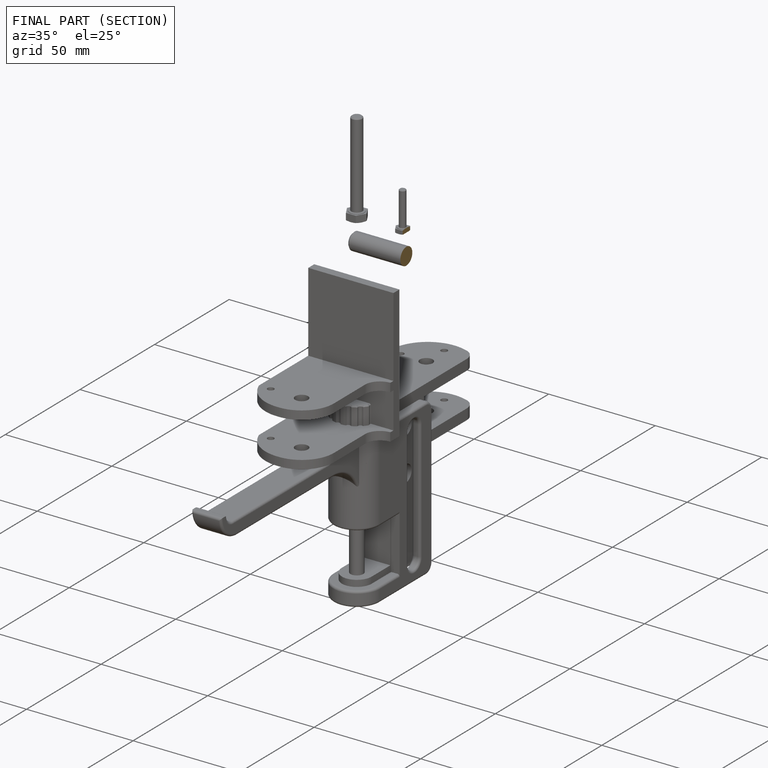
[diagram: finished part — half-section view (interior)]
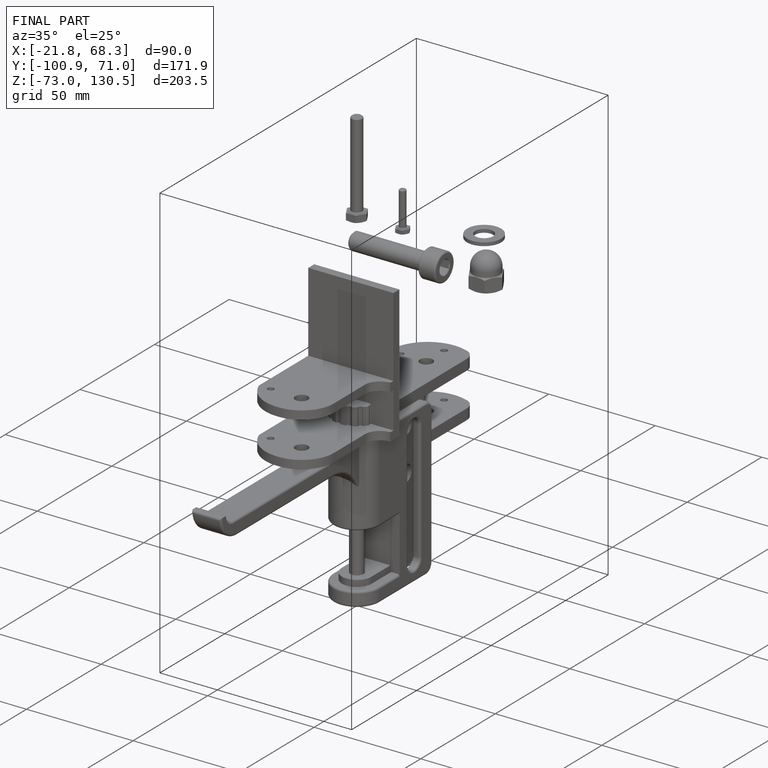
[diagram: finished part — iso view with bounding-box wireframe]
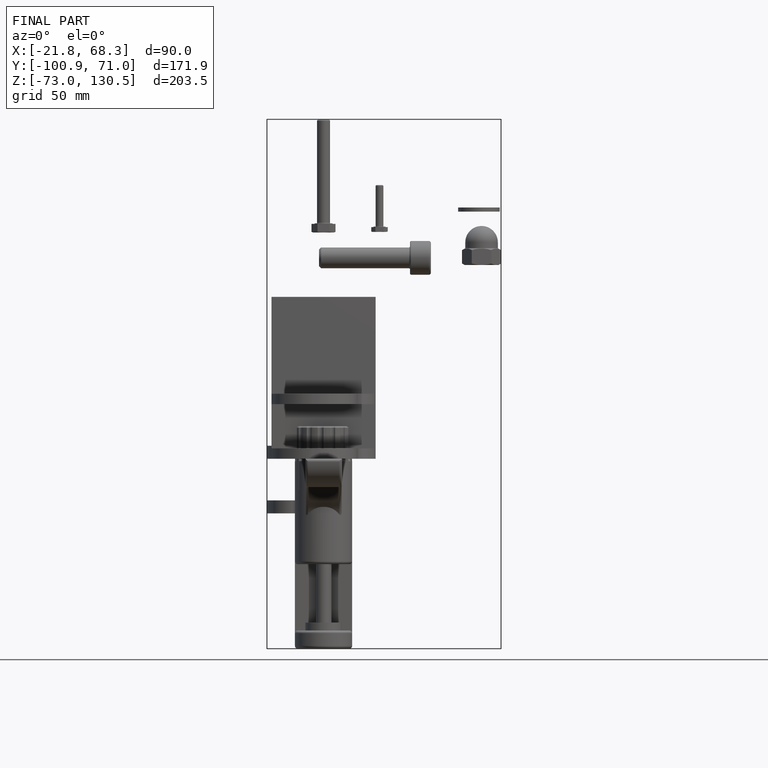
[diagram: finished part — front view with bounding-box wireframe]
